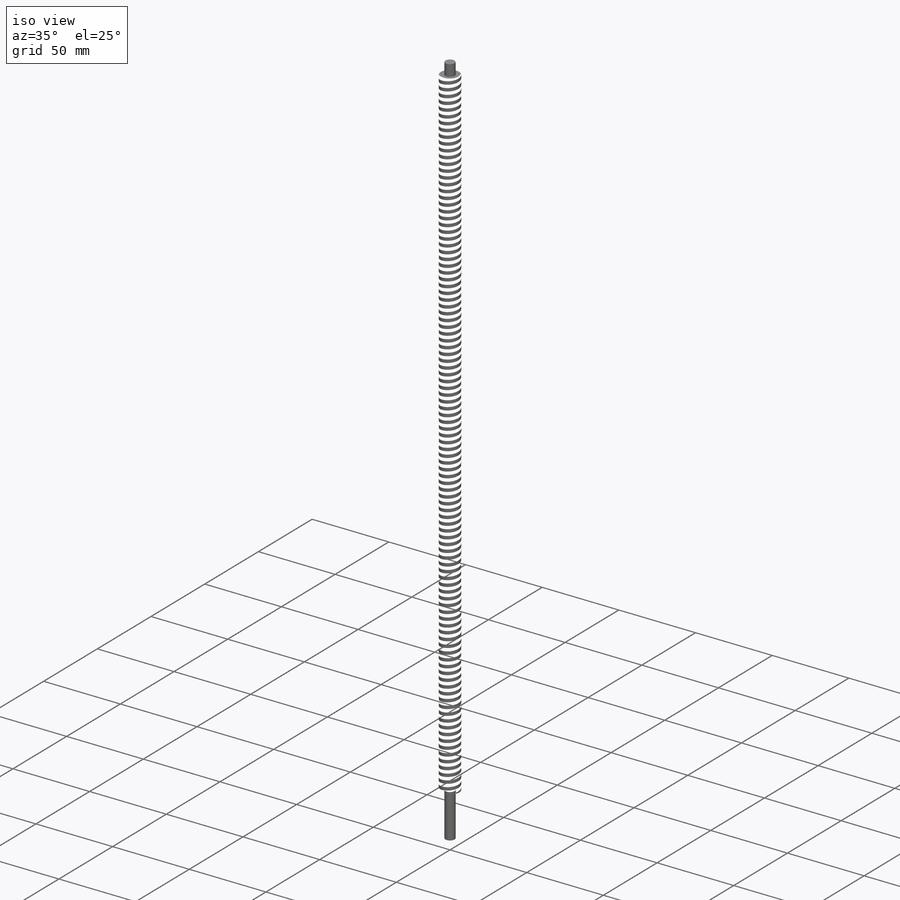
[diagram: iso view]
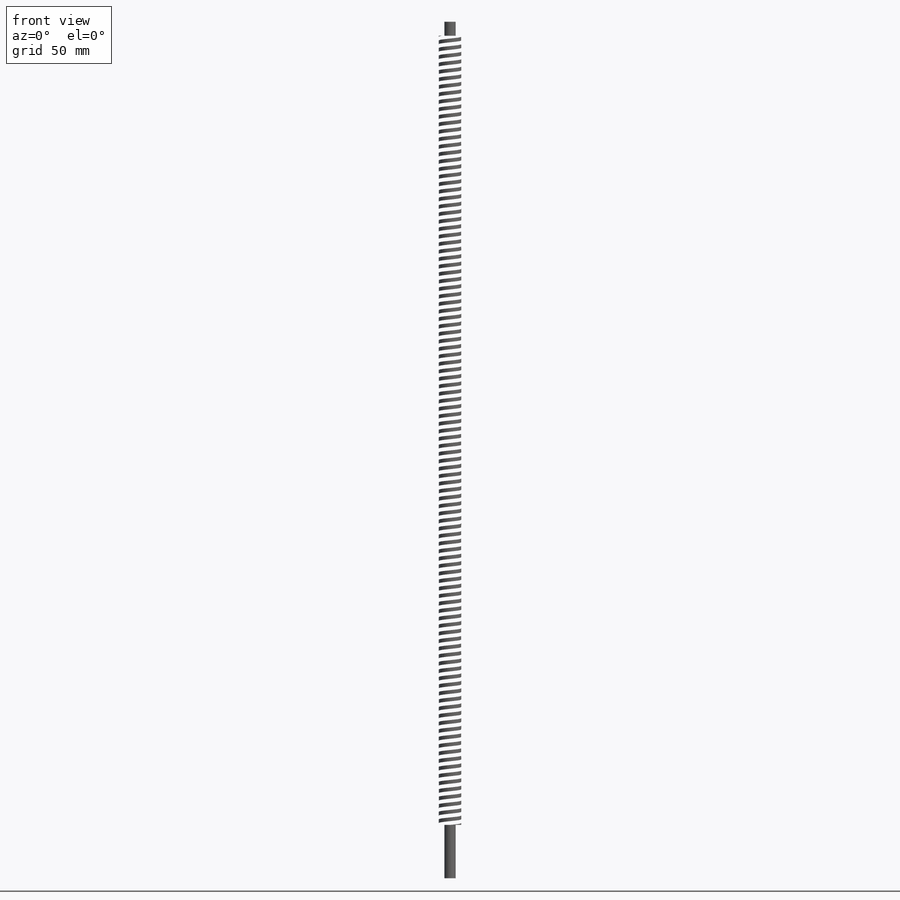
[diagram: front view]
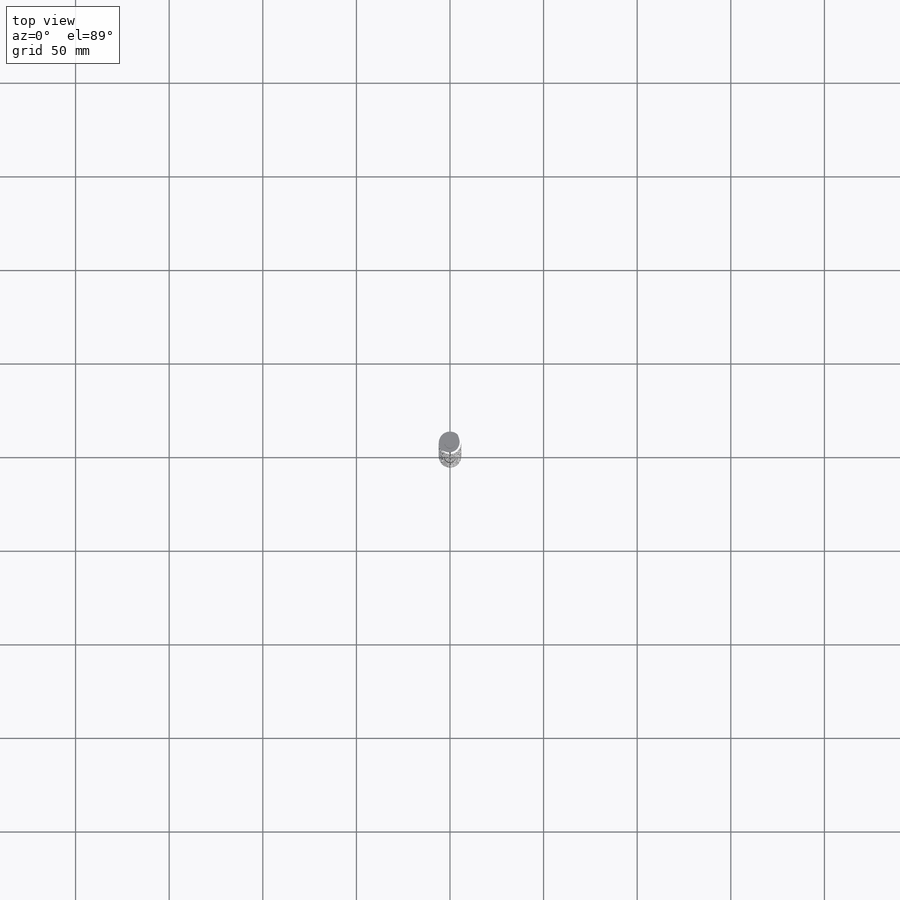
[diagram: top view]
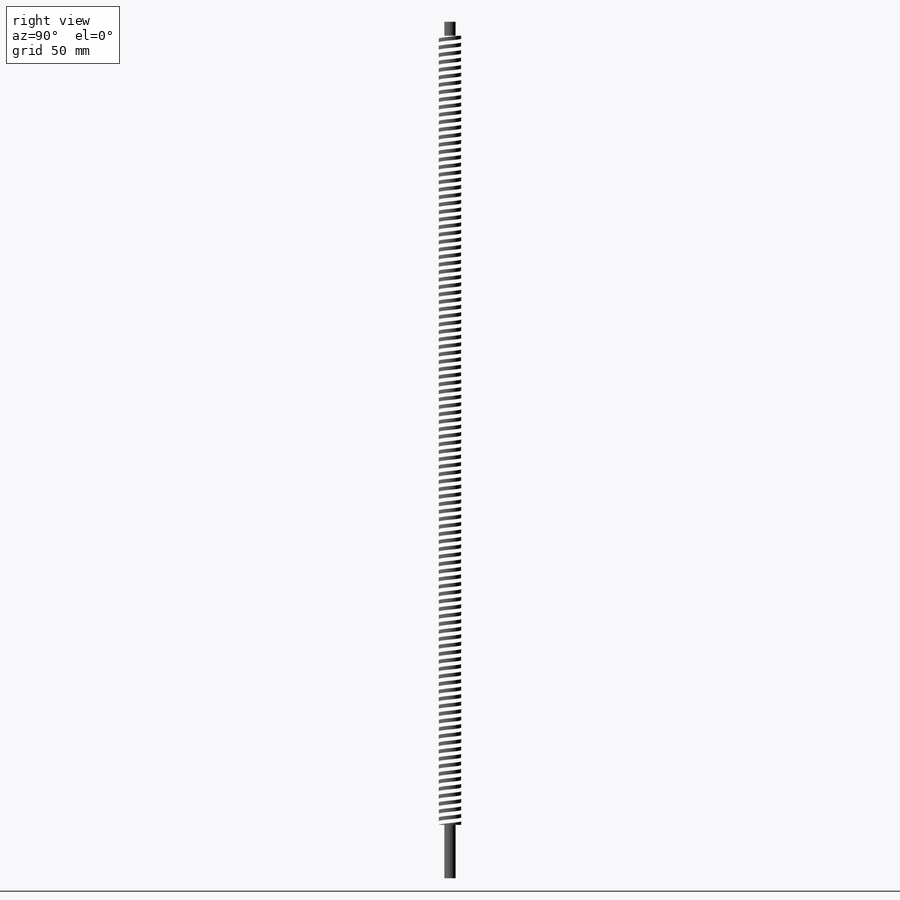
[diagram: right view]
SOLIDWORKS PART (.sldprt)
format: sldprt  version: not decoded by parser v0  size: 3,101,184 bytes
history: native  units: mm
features: sketch x5, extrude x3, thread x2, material x1, helix x1, sweep x1 (+12 scaffold rows collapsed)
feature tree (25):
  scaffold x12  (default folders/planes/origin — collapsed)
  material  "Material <not specified>"
  sketch  "Sketch1"  dims[D1=12.0mm]
  extrude  "Main-Screw"  Depth=118.5mm
  sketch  "Sketch2"  dims[D1=6.0mm]
  sketch  "Sketch3"  dims[D1=6.0mm]
  extrude  "Motor-Shaft"  Depth=7.5mm
  extrude  "Bearing-Shaft"  [1 undecoded]
  thread  "Cosmetic Thread1"  Diameter=12mm  [1 undecoded]
  thread  "Cosmetic Thread2"  Diameter=5mm  [1 undecoded]
  sketch  "Sketch7"
  helix  "Helix/Spiral1"  Pitch=421.5mm
  sketch  "Sketch8"  dims[D1=2.0mm]
  sweep  "Threads"
decode coverage: 9 of 12 modeling features carry decoded parameters
note: 3 parameter values undecoded
note: suppression state not decoded; provenance and decode notes live in map.json
